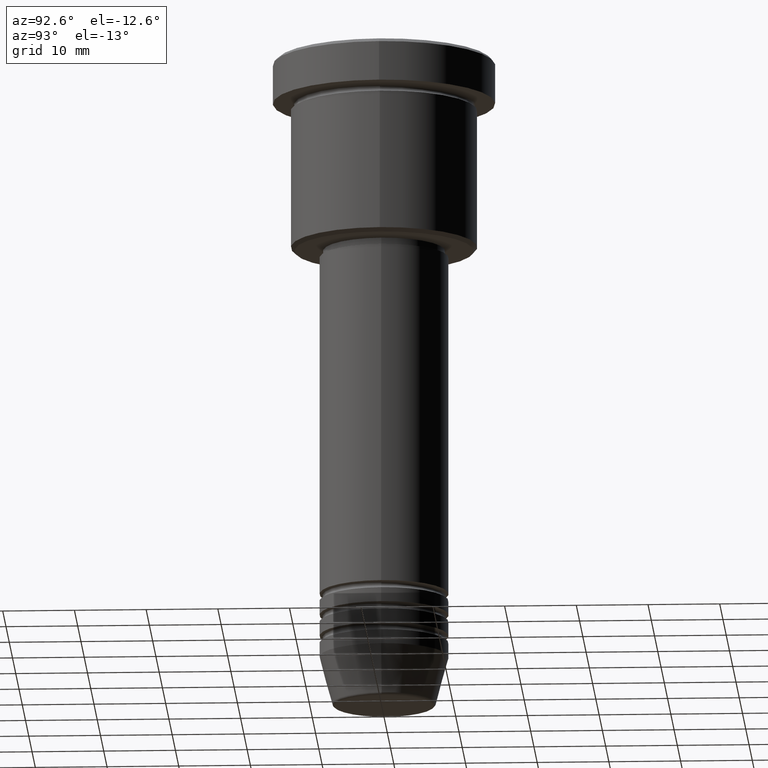
[diagram: clean part render]
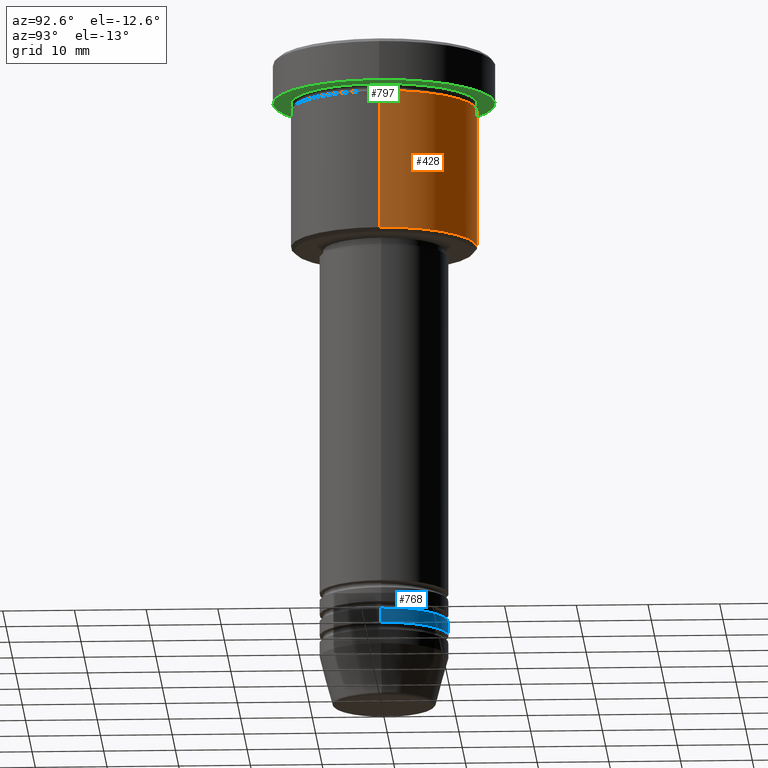
[diagram: same view with three faces highlighted in distinct colors, each labeled with its STEP entity id]
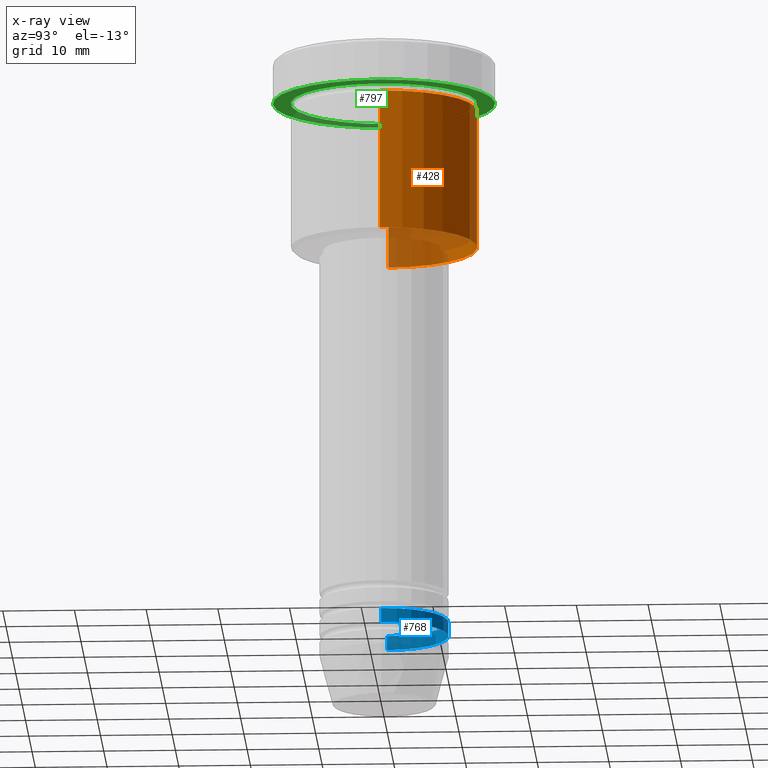
[diagram: x-ray of the same camera — body ghosted, the three highlighted faces saturated]
A machine part, auxiliary view with three faces highlighted in distinct colors.
The next image is the same camera in x-ray (body ghosted, the three faces saturated) — at least one of them is partly hidden behind the body in this view.
Their STEP definitions:

[orange] entity #428 — the highlighted cylindrical surface (partial cylindrical patch) has radius 13 mm, axis along (-0, -0, 1).
#18 = DIRECTION ( 'NONE',  ( -0.000000000000000000, -0.000000000000000000, 1.000000000000000000 ) ) ;
#45 = AXIS2_PLACEMENT_3D ( 'NONE', #365, #18, #533 ) ;
#53 = CARTESIAN_POINT ( 'NONE',  ( 13.00000000000000000, 0.000000000000000000, 0.000000000000000000 ) ) ;
#78 = DIRECTION ( 'NONE',  ( 1.000000000000000000, 0.000000000000000000, 0.000000000000000000 ) ) ;
#88 = VERTEX_POINT ( 'NONE', #478 ) ;
#96 = CYLINDRICAL_SURFACE ( 'NONE', #984, 13.00000000000000000 ) ;
#168 = VERTEX_POINT ( 'NONE', #693 ) ;
#169 = FACE_OUTER_BOUND ( 'NONE', #421, .T. ) ;
#210 = CARTESIAN_POINT ( 'NONE',  ( 0.000000000000000000, 0.000000000000000000, -6.999999999999995559 ) ) ;
#238 = AXIS2_PLACEMENT_3D ( 'NONE', #210, #291, #662 ) ;
#248 = DIRECTION ( 'NONE',  ( -0.000000000000000000, -0.000000000000000000, 1.000000000000000000 ) ) ;
#257 = VECTOR ( 'NONE', #248, 1000.000000000000000 ) ;
#268 = CARTESIAN_POINT ( 'NONE',  ( 13.00000000000000000, 0.000000000000000000, -26.49999999999997513 ) ) ;
#291 = DIRECTION ( 'NONE',  ( -0.000000000000000000, -0.000000000000000000, 1.000000000000000000 ) ) ;
#303 = CARTESIAN_POINT ( 'NONE',  ( -13.00000000000000000, 1.592040838891559095E-15, -6.999999999999995559 ) ) ;
#315 = CIRCLE ( 'NONE', #238, 13.00000000000000000 ) ;
#326 = LINE ( 'NONE', #791, #257 ) ;
#365 = CARTESIAN_POINT ( 'NONE',  ( 0.000000000000000000, 0.000000000000000000, -26.49999999999997513 ) ) ;
#377 = VECTOR ( 'NONE', #1055, 1000.000000000000000 ) ;
#396 = EDGE_CURVE ( 'NONE', #817, #168, #790, .T. ) ;
#421 = EDGE_LOOP ( 'NONE', ( #868, #857, #1110, #489 ) ) ;
#428 = ADVANCED_FACE ( 'NONE', ( #169 ), #96, .T. ) ;
#478 = CARTESIAN_POINT ( 'NONE',  ( 13.00000000000000000, 0.000000000000000000, -6.999999999999995559 ) ) ;
#489 = ORIENTED_EDGE ( 'NONE', *, *, #586, .F. ) ;
#533 = DIRECTION ( 'NONE',  ( -1.000000000000000000, 0.000000000000000000, 0.000000000000000000 ) ) ;
#586 = EDGE_CURVE ( 'NONE', #817, #88, #883, .T. ) ;
#662 = DIRECTION ( 'NONE',  ( 1.000000000000000000, 0.000000000000000000, 0.000000000000000000 ) ) ;
#693 = CARTESIAN_POINT ( 'NONE',  ( -13.00000000000000000, 1.592040838891559095E-15, -26.49999999999997513 ) ) ;
#732 = CARTESIAN_POINT ( 'NONE',  ( 0.000000000000000000, 0.000000000000000000, 0.000000000000000000 ) ) ;
#790 = CIRCLE ( 'NONE', #45, 13.00000000000000000 ) ;
#791 = CARTESIAN_POINT ( 'NONE',  ( -13.00000000000000000, 1.592040838891559095E-15, 0.000000000000000000 ) ) ;
#817 = VERTEX_POINT ( 'NONE', #268 ) ;
#857 = ORIENTED_EDGE ( 'NONE', *, *, #1032, .T. ) ;
#868 = ORIENTED_EDGE ( 'NONE', *, *, #396, .T. ) ;
#877 = VERTEX_POINT ( 'NONE', #303 ) ;
#883 = LINE ( 'NONE', #53, #377 ) ;
#901 = DIRECTION ( 'NONE',  ( -0.000000000000000000, -0.000000000000000000, 1.000000000000000000 ) ) ;
#961 = EDGE_CURVE ( 'NONE', #88, #877, #315, .T. ) ;
#984 = AXIS2_PLACEMENT_3D ( 'NONE', #732, #901, #78 ) ;
#1032 = EDGE_CURVE ( 'NONE', #168, #877, #326, .T. ) ;
#1055 = DIRECTION ( 'NONE',  ( -0.000000000000000000, -0.000000000000000000, 1.000000000000000000 ) ) ;
#1110 = ORIENTED_EDGE ( 'NONE', *, *, #961, .F. ) ;

[blue] entity #768 — the highlighted cylindrical surface (partial cylindrical patch) has radius 9 mm, axis along (-0, -0, 1).
#3 = DIRECTION ( 'NONE',  ( -0.000000000000000000, -0.000000000000000000, 1.000000000000000000 ) ) ;
#103 = VERTEX_POINT ( 'NONE', #742 ) ;
#179 = EDGE_CURVE ( 'NONE', #1170, #578, #610, .T. ) ;
#195 = EDGE_LOOP ( 'NONE', ( #635, #1022, #520, #304 ) ) ;
#280 = CARTESIAN_POINT ( 'NONE',  ( 0.000000000000000000, 0.000000000000000000, 0.000000000000000000 ) ) ;
#288 = EDGE_CURVE ( 'NONE', #473, #1170, #563, .T. ) ;
#304 = ORIENTED_EDGE ( 'NONE', *, *, #753, .F. ) ;
#350 = DIRECTION ( 'NONE',  ( -0.000000000000000000, -0.000000000000000000, 1.000000000000000000 ) ) ;
#356 = DIRECTION ( 'NONE',  ( -0.000000000000000000, -0.000000000000000000, 1.000000000000000000 ) ) ;
#409 = CARTESIAN_POINT ( 'NONE',  ( 9.000000000000000000, 0.000000000000000000, -81.99999999999997158 ) ) ;
#473 = VERTEX_POINT ( 'NONE', #409 ) ;
#480 = EDGE_CURVE ( 'NONE', #103, #578, #1062, .T. ) ;
#520 = ORIENTED_EDGE ( 'NONE', *, *, #480, .F. ) ;
#553 = CYLINDRICAL_SURFACE ( 'NONE', #717, 9.000000000000000000 ) ;
#563 = CIRCLE ( 'NONE', #951, 9.000000000000000000 ) ;
#578 = VERTEX_POINT ( 'NONE', #1150 ) ;
#610 = LINE ( 'NONE', #995, #1080 ) ;
#617 = CARTESIAN_POINT ( 'NONE',  ( -9.000000000000000000, 1.102182119232617714E-15, -81.99999999999997158 ) ) ;
#629 = CARTESIAN_POINT ( 'NONE',  ( 9.000000000000000000, 0.000000000000000000, 0.000000000000000000 ) ) ;
#635 = ORIENTED_EDGE ( 'NONE', *, *, #288, .T. ) ;
#654 = DIRECTION ( 'NONE',  ( -0.000000000000000000, -0.000000000000000000, 1.000000000000000000 ) ) ;
#717 = AXIS2_PLACEMENT_3D ( 'NONE', #280, #3, #748 ) ;
#723 = DIRECTION ( 'NONE',  ( 1.000000000000000000, 0.000000000000000000, 0.000000000000000000 ) ) ;
#735 = CARTESIAN_POINT ( 'NONE',  ( 0.000000000000000000, 0.000000000000000000, -81.99999999999997158 ) ) ;
#736 = FACE_OUTER_BOUND ( 'NONE', #195, .T. ) ;
#742 = CARTESIAN_POINT ( 'NONE',  ( 9.000000000000000000, 0.000000000000000000, -79.99999999999997158 ) ) ;
#748 = DIRECTION ( 'NONE',  ( 1.000000000000000000, 0.000000000000000000, 0.000000000000000000 ) ) ;
#753 = EDGE_CURVE ( 'NONE', #473, #103, #1087, .T. ) ;
#768 = ADVANCED_FACE ( 'NONE', ( #736 ), #553, .T. ) ;
#928 = CARTESIAN_POINT ( 'NONE',  ( 0.000000000000000000, 0.000000000000000000, -79.99999999999997158 ) ) ;
#936 = VECTOR ( 'NONE', #1169, 1000.000000000000000 ) ;
#951 = AXIS2_PLACEMENT_3D ( 'NONE', #735, #356, #723 ) ;
#966 = AXIS2_PLACEMENT_3D ( 'NONE', #928, #654, #1119 ) ;
#995 = CARTESIAN_POINT ( 'NONE',  ( -9.000000000000000000, 1.102182119232617714E-15, 0.000000000000000000 ) ) ;
#1022 = ORIENTED_EDGE ( 'NONE', *, *, #179, .T. ) ;
#1062 = CIRCLE ( 'NONE', #966, 9.000000000000000000 ) ;
#1080 = VECTOR ( 'NONE', #350, 1000.000000000000000 ) ;
#1087 = LINE ( 'NONE', #629, #936 ) ;
#1119 = DIRECTION ( 'NONE',  ( 1.000000000000000000, 0.000000000000000000, 0.000000000000000000 ) ) ;
#1150 = CARTESIAN_POINT ( 'NONE',  ( -9.000000000000000000, 1.102182119232617714E-15, -79.99999999999997158 ) ) ;
#1169 = DIRECTION ( 'NONE',  ( -0.000000000000000000, -0.000000000000000000, 1.000000000000000000 ) ) ;
#1170 = VERTEX_POINT ( 'NONE', #617 ) ;

[green] entity #797 — the highlighted planar face has unit normal (0, 0, -1).
#8 = EDGE_LOOP ( 'NONE', ( #405, #616 ) ) ;
#70 = CARTESIAN_POINT ( 'NONE',  ( -15.50000000000000000, 1.898202538678397557E-15, -5.999999999999995559 ) ) ;
#93 = CARTESIAN_POINT ( 'NONE',  ( 0.000000000000000000, 15.50000000000000000, -5.999999999999995559 ) ) ;
#106 = DIRECTION ( 'NONE',  ( 1.000000000000000000, 0.000000000000000000, 0.000000000000000000 ) ) ;
#112 = PLANE ( 'NONE',  #277 ) ;
#127 = AXIS2_PLACEMENT_3D ( 'NONE', #263, #631, #430 ) ;
#131 = CIRCLE ( 'NONE', #255, 15.50000000000000000 ) ;
#146 = AXIS2_PLACEMENT_3D ( 'NONE', #560, #460, #657 ) ;
#151 = VERTEX_POINT ( 'NONE', #965 ) ;
#198 = CARTESIAN_POINT ( 'NONE',  ( -13.00000000000000000, 0.000000000000000000, -5.999999999999994671 ) ) ;
#223 = EDGE_CURVE ( 'NONE', #991, #649, #854, .T. ) ;
#255 = AXIS2_PLACEMENT_3D ( 'NONE', #417, #634, #106 ) ;
#263 = CARTESIAN_POINT ( 'NONE',  ( 0.000000000000000000, 0.000000000000000000, -5.999999999999995559 ) ) ;
#277 = AXIS2_PLACEMENT_3D ( 'NONE', #93, #837, #731 ) ;
#282 = ORIENTED_EDGE ( 'NONE', *, *, #223, .F. ) ;
#297 = DIRECTION ( 'NONE',  ( -1.000000000000000000, 0.000000000000000000, 0.000000000000000000 ) ) ;
#363 = FACE_BOUND ( 'NONE', #8, .T. ) ;
#405 = ORIENTED_EDGE ( 'NONE', *, *, #846, .T. ) ;
#417 = CARTESIAN_POINT ( 'NONE',  ( 0.000000000000000000, 0.000000000000000000, -5.999999999999995559 ) ) ;
#430 = DIRECTION ( 'NONE',  ( 1.000000000000000000, 0.000000000000000000, 0.000000000000000000 ) ) ;
#443 = EDGE_CURVE ( 'NONE', #151, #810, #504, .T. ) ;
#456 = CARTESIAN_POINT ( 'NONE',  ( 0.000000000000000000, 0.000000000000000000, -5.999999999999995559 ) ) ;
#460 = DIRECTION ( 'NONE',  ( -0.000000000000000000, -0.000000000000000000, 1.000000000000000000 ) ) ;
#474 = CIRCLE ( 'NONE', #146, 13.00000000000000000 ) ;
#504 = CIRCLE ( 'NONE', #772, 13.00000000000000000 ) ;
#544 = FACE_OUTER_BOUND ( 'NONE', #743, .T. ) ;
#545 = ORIENTED_EDGE ( 'NONE', *, *, #733, .F. ) ;
#560 = CARTESIAN_POINT ( 'NONE',  ( 0.000000000000000000, 0.000000000000000000, -5.999999999999995559 ) ) ;
#616 = ORIENTED_EDGE ( 'NONE', *, *, #443, .T. ) ;
#631 = DIRECTION ( 'NONE',  ( -0.000000000000000000, -0.000000000000000000, 1.000000000000000000 ) ) ;
#634 = DIRECTION ( 'NONE',  ( -0.000000000000000000, -0.000000000000000000, 1.000000000000000000 ) ) ;
#643 = DIRECTION ( 'NONE',  ( -0.000000000000000000, -0.000000000000000000, 1.000000000000000000 ) ) ;
#649 = VERTEX_POINT ( 'NONE', #70 ) ;
#657 = DIRECTION ( 'NONE',  ( -1.000000000000000000, 0.000000000000000000, 0.000000000000000000 ) ) ;
#731 = DIRECTION ( 'NONE',  ( -1.000000000000000000, 0.000000000000000000, -0.000000000000000000 ) ) ;
#733 = EDGE_CURVE ( 'NONE', #649, #991, #131, .T. ) ;
#743 = EDGE_LOOP ( 'NONE', ( #282, #545 ) ) ;
#772 = AXIS2_PLACEMENT_3D ( 'NONE', #456, #643, #297 ) ;
#797 = ADVANCED_FACE ( 'NONE', ( #363, #544 ), #112, .T. ) ;
#810 = VERTEX_POINT ( 'NONE', #198 ) ;
#837 = DIRECTION ( 'NONE',  ( 0.000000000000000000, 0.000000000000000000, -1.000000000000000000 ) ) ;
#846 = EDGE_CURVE ( 'NONE', #810, #151, #474, .T. ) ;
#854 = CIRCLE ( 'NONE', #127, 15.50000000000000000 ) ;
#945 = CARTESIAN_POINT ( 'NONE',  ( 15.50000000000000000, 0.000000000000000000, -5.999999999999995559 ) ) ;
#965 = CARTESIAN_POINT ( 'NONE',  ( 13.00000000000000000, 1.592040838891559095E-15, -5.999999999999994671 ) ) ;
#991 = VERTEX_POINT ( 'NONE', #945 ) ;